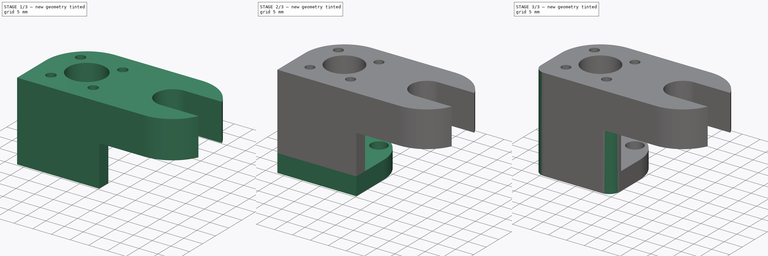
[diagram: build sequence overview — one tinted view per stage of 3, left to right]
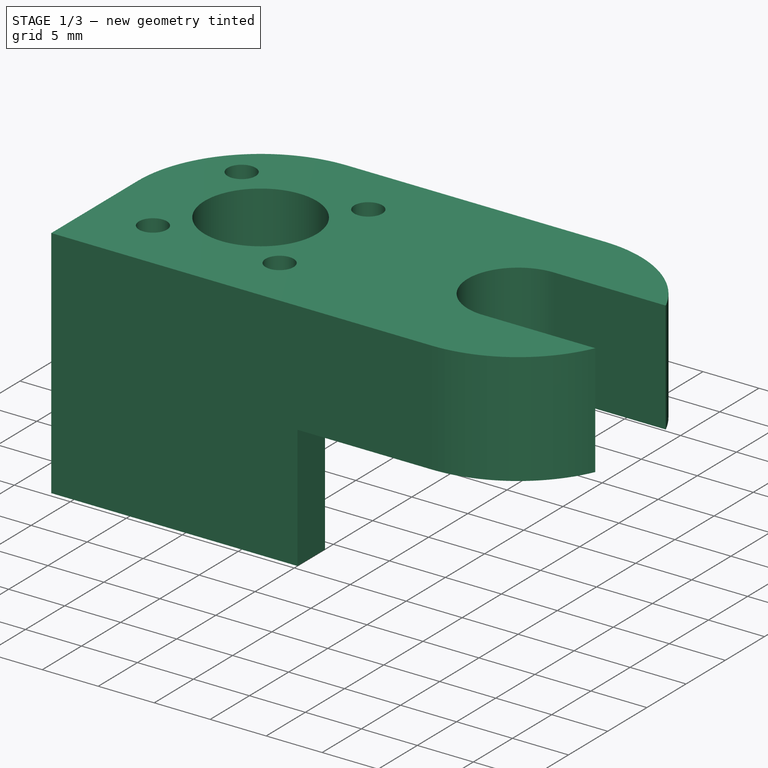
[diagram: stage 1 of 3 — iso view after this stage's code; geometry added in this stage tinted green]
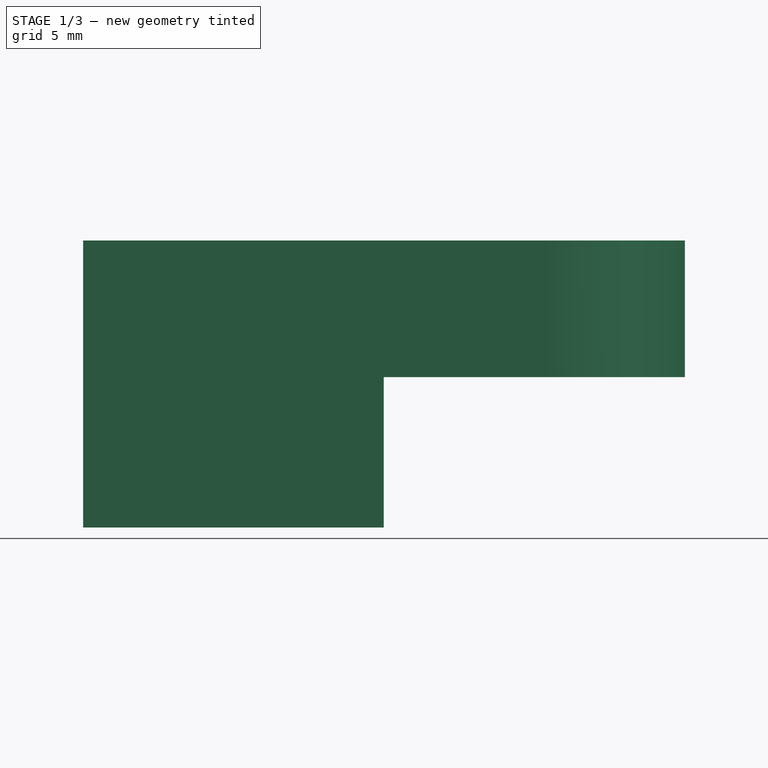
[diagram: stage 1 of 3 — front view after this stage's code; geometry added in this stage tinted green]
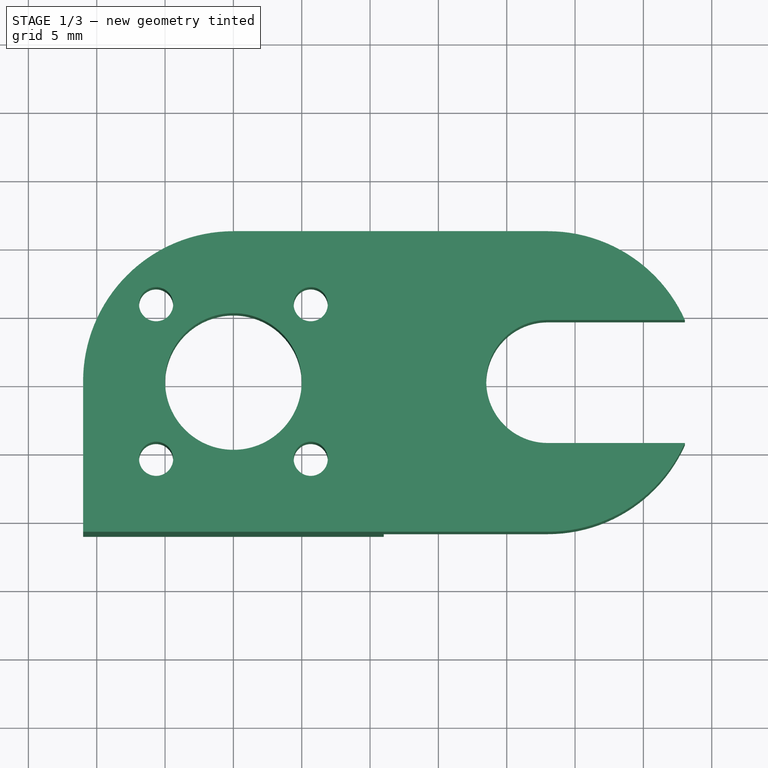
[diagram: stage 1 of 3 — top view after this stage's code; geometry added in this stage tinted green]
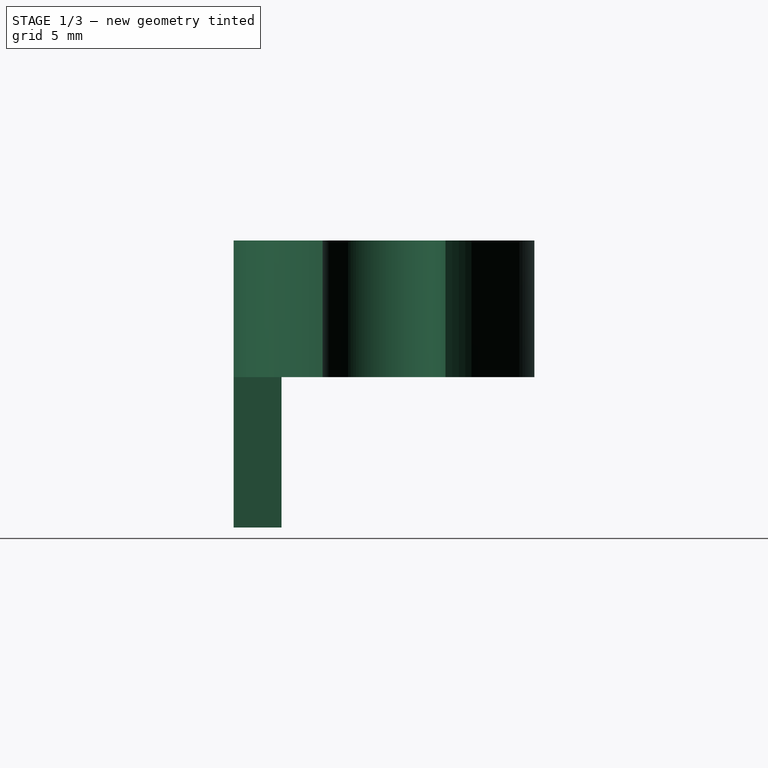
[diagram: stage 1 of 3 — right view after this stage's code; geometry added in this stage tinted green]
FCSTD DOCUMENT  (FreeCAD 0.18R4 (GitTag))
Label: ZAntiWobbler3
License: All rights reserved
LicenseURL: http://en.wikipedia.org/wiki/All_rights_reserved
objects: Sketcher::SketchObject×6, PartDesign::Pad×3, Spreadsheet::Sheet×2, PartDesign::Pocket×2, PartDesign::Body×1
note: 17 computed .brp shape members not serialized (recipe doc carries the construction recipe); baked Part::Feature solids carry a one-line shape summary decoded from their .brp

FEATURE [Spreadsheet::Sheet] Spreadsheet  label="Dimensions"
  cells = A1=ZScrewHoleRadius; B1(ZScrewHoleRadius)==4mm; A2=ZScrewHoleHolderOuterRadius; B2(ZScrewHoleHolderOuterRadius)==5mm; A3=AntiWobblerRadius; B3(AntiWobblerRadius)==11mm; A4=AntiWobblerHeight; B4(AntiWobblerHeight)==10mm; A5=AntiWobblerM3ScrewSeparation; B5(AntiWobblerM3ScrewSeparation)==16mm; A6=ZscrewtoZGuideSeparation; B6(ZscrewtoZGuideSeparation)==23mm; A7=ZGuideRadius; B7(ZGuideRadius)==4mm; A8=ZGuideClearance; B8(ZGuideClearance)==0.5mm; A9=AntiWobblersSeparationHeight; B9(AntiWobblersSeparationHeight)==11mm; A10=AntiWobblersSeparationThickness; B10(AntiWobblersSeparationThickness)==3.5mm; A11=ZScrewHolderBottomHeight; B11(ZScrewHolderBottomHeight)==5mm
FEATURE [Sketcher::SketchObject] Sketch  label="Sketch_BaseZScrewHolder"
  MapMode = 5
  Support = -> [XY_Plane]
  expr: Constraints[38] = Dimensions.AntiWobblerM3ScrewSeparation / 2
  expr: Constraints[26] = M3.M3ThreadRadius
  expr: Constraints[34] = Dimensions.AntiWobblerM3ScrewSeparation
  expr: Constraints[33] = Dimensions.AntiWobblerM3ScrewSeparation
  expr: Constraints[27] = M3.M3ThreadRadius
  expr: Constraints[9] = Dimensions.ZScrewHoleHolderOuterRadius
  expr: Constraints[28] = M3.M3ThreadRadius
  expr: Constraints[25] = M3.M3ThreadRadius
  expr: Constraints[12] = Dimensions.AntiWobblerRadius
  expr: Constraints[11] = Dimensions.AntiWobblerRadius
  expr: Constraints[13] = Dimensions.ZGuideRadius + Dimensions.ZGuideClearance
  expr: Constraints[10] = Dimensions.ZscrewtoZGuideSeparation
  sketch-geometry (17):
    g0: LineSegment StartX=7e-16 StartY=11 StartZ=0 EndX=23 EndY=11 EndZ=0
    g1: LineSegment StartX=23 StartY=-11 StartZ=0 EndX=0 EndY=-11 EndZ=0
    g2: ArcOfCircle CenterX=0 CenterY=2.7e-15 CenterZ=0 NormalX=0 NormalY=0 NormalZ=1 AngleXU=0 Radius=11 StartAngle=1.5708 EndAngle=3.14159
    g3: ArcOfCircle CenterX=23 CenterY=-9e-16 CenterZ=0 NormalX=0 NormalY=0 NormalZ=1 AngleXU=0 Radius=11 StartAngle=4.71239 EndAngle=5.86173
    g4: Circle CenterX=0 CenterY=2.7e-15 CenterZ=0 NormalX=0 NormalY=0 NormalZ=1 AngleXU=0 Radius=5
    g5: ArcOfCircle CenterX=23 CenterY=-9e-16 CenterZ=0 NormalX=0 NormalY=0 NormalZ=1 AngleXU=0 Radius=4.5 StartAngle=1.5708 EndAngle=4.71239
    g6: LineSegment StartX=23 StartY=4.5 StartZ=0 EndX=33.0374 EndY=4.5 EndZ=0
    g7: LineSegment StartX=23 StartY=-4.5 StartZ=0 EndX=33.0374 EndY=-4.5 EndZ=0
    g8: ArcOfCircle CenterX=23 CenterY=-9e-16 CenterZ=0 NormalX=0 NormalY=0 NormalZ=1 AngleXU=0 Radius=11 StartAngle=0.421458 EndAngle=1.5708
    g9: Circle CenterX=-5.65685 CenterY=5.65685 CenterZ=0 NormalX=0 NormalY=0 NormalZ=1 AngleXU=0 Radius=1.25
    g10: Circle CenterX=5.65685 CenterY=5.65685 CenterZ=0 NormalX=0 NormalY=0 NormalZ=1 AngleXU=0 Radius=1.25
    g11: Circle CenterX=5.65685 CenterY=-5.65685 CenterZ=0 NormalX=0 NormalY=0 NormalZ=1 AngleXU=0 Radius=1.25
    g12: Circle CenterX=-5.65685 CenterY=-5.65685 CenterZ=0 NormalX=0 NormalY=0 NormalZ=1 AngleXU=0 Radius=1.25
    g13: LineSegment [constr] StartX=-5.65685 StartY=5.65685 StartZ=0 EndX=5.65685 EndY=-5.65685 EndZ=0
    g14: LineSegment [constr] StartX=-5.65685 StartY=-5.65685 StartZ=0 EndX=5.65685 EndY=5.65685 EndZ=0
    g15: LineSegment StartX=-11 StartY=-11 StartZ=0 EndX=0 EndY=-11 EndZ=0
    g16: LineSegment StartX=-11 StartY=-11 StartZ=0 EndX=-11 EndY=3.6e-15 EndZ=0
  constraints (46):
    c: Horizontal(g0)
    c: Horizontal(g1)
    c: PointOnObject(g0,g-2)
    c: Coincident(g2,g0)
    c: Coincident(g8,g0)
    c: Coincident(g4,g2)
    c: Coincident(g5,g3)
    c: Horizontal(g6)
    c: Horizontal(g7)
    c: Radius(g4) = 5
    c: DistanceX(g2,g3) = 23
    c: Radius(g2) = 11
    c: Radius(g3) = 11
    c: Radius(g5) = 4.5
    c: Coincident(g2,g-1)
    c: Equal(g3,g8)
    c: Coincident(g3,g7)
    c: Coincident(g8,g6)
    c: Coincident(g3,g8)
    c: Coincident(g7,g5)
    c: Coincident(g3,g1)
    c: Vertical(g0,g5)
    c: Vertical(g1,g5)
    c: Vertical(g1,g2)
    c: Tangent(g6,g5) = 1.5708
    c: Radius(g9) = 1.25
    c: Radius(g10) = 1.25
    c: Radius(g12) = 1.25
    c: Radius(g11) = 1.25
    c: Coincident(g13,g9)
    c: Coincident(g13,g11)
    c: Coincident(g14,g12)
    c: Coincident(g14,g10)
    c: Distance(g14) = 16
    c: Distance(g13) = 16
    c: Perpendicular(g13,g14)
    c: Symmetric(g10,g9,g-2)
    c: Symmetric(g10,g11,g-1)
    c: Distance(g12,g2) = 8
    c: Coincident(g16,g15)
    c: Horizontal(g15)
    c: Vertical(g16)
    c: Coincident(g15,g1)
    c: Coincident(g16,g2)
    c: Horizontal(g2,g2)
    c: Vertical(g5,g3)
FEATURE [PartDesign::Pad] Pad  label="Pad_BaseZScrewHolder"
  Length = 10
  Length2 = 100
  Profile = -> Sketch
  Type = 0
  expr: Length = Dimensions.AntiWobblerHeight
FEATURE [Spreadsheet::Sheet] Spreadsheet001  label="M3"
  cells = A1=M3ThreadRadius; B1(M3ThreadRadius)=1.25; A2=M3HeadRadius; B2(M3HeadRadius)=2.75; A3=M3HeadHeight; B3(M3HeadHeight)=3; A4=M3NutFlatToFlat_S; B4(M3NutFlatToFlat_S)=5.5; A5=M3NutThickness; B5(M3NutThickness)=2.4
FEATURE [Sketcher::SketchObject] Sketch002  label="Sketch_ZScrewHoldersSeparator"
  MapMode = 5
  Placement = pos=(0,0,0) rot=(1,0,0;3.14159rad)
  Support = -> [Pad]
  expr: Constraints[11] = Dimensions.AntiWobblerRadius
  expr: Constraints[10] = Dimensions.AntiWobblersSeparationThickness
  expr: Constraints[9] = Dimensions.AntiWobblerRadius
  expr: Constraints[8] = Dimensions.AntiWobblerRadius
  sketch-geometry (4):
    g0: LineSegment StartX=-11 StartY=11 StartZ=0 EndX=11 EndY=11 EndZ=0
    g1: LineSegment StartX=11 StartY=11 StartZ=0 EndX=11 EndY=7.5 EndZ=0
    g2: LineSegment StartX=11 StartY=7.5 StartZ=0 EndX=-11 EndY=7.5 EndZ=0
    g3: LineSegment StartX=-11 StartY=7.5 StartZ=0 EndX=-11 EndY=11 EndZ=0
  constraints (12):
    c: Coincident(g0,g1)
    c: Coincident(g1,g2)
    c: Coincident(g2,g3)
    c: Coincident(g3,g0)
    c: Horizontal(g0)
    c: Horizontal(g2)
    c: Vertical(g1)
    c: Vertical(g3)
    c: DistanceX(g0,g-1) = 11
    c: DistanceX(g-1,g0) = 11
    c: DistanceY(g1,g1) = 3.5
    c: DistanceY(g-1,g0) = 11
FEATURE [PartDesign::Pad] Pad001  label="Pad_ZScrewHoldersSeparator"
  BaseFeature = -> Pad
  Length = 11
  Length2 = 100
  Profile = -> Sketch002
  Type = 0
  expr: Length = Dimensions.AntiWobblersSeparationHeight
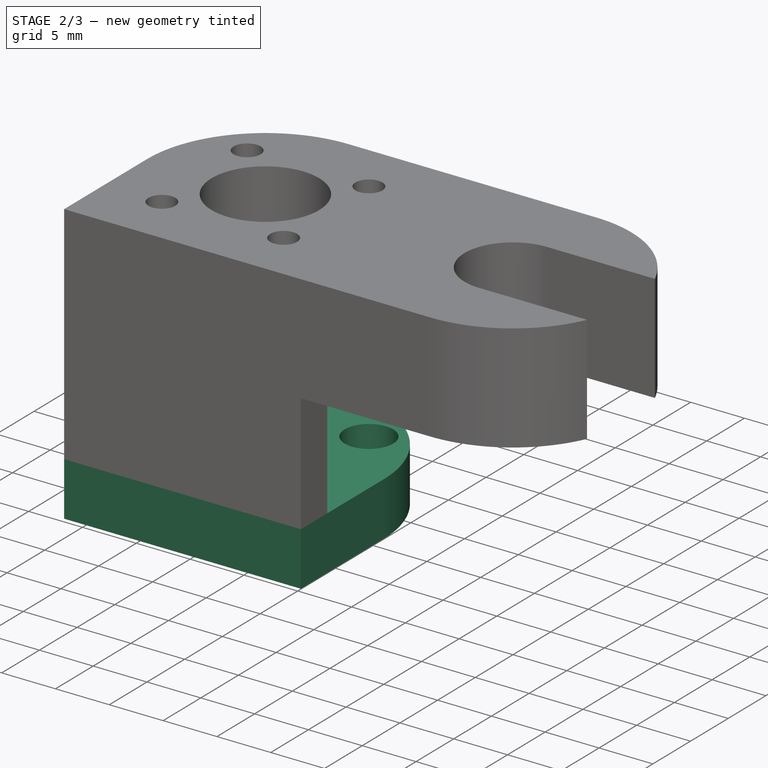
[diagram: stage 2 of 3 — iso view after this stage's code; geometry added in this stage tinted green]
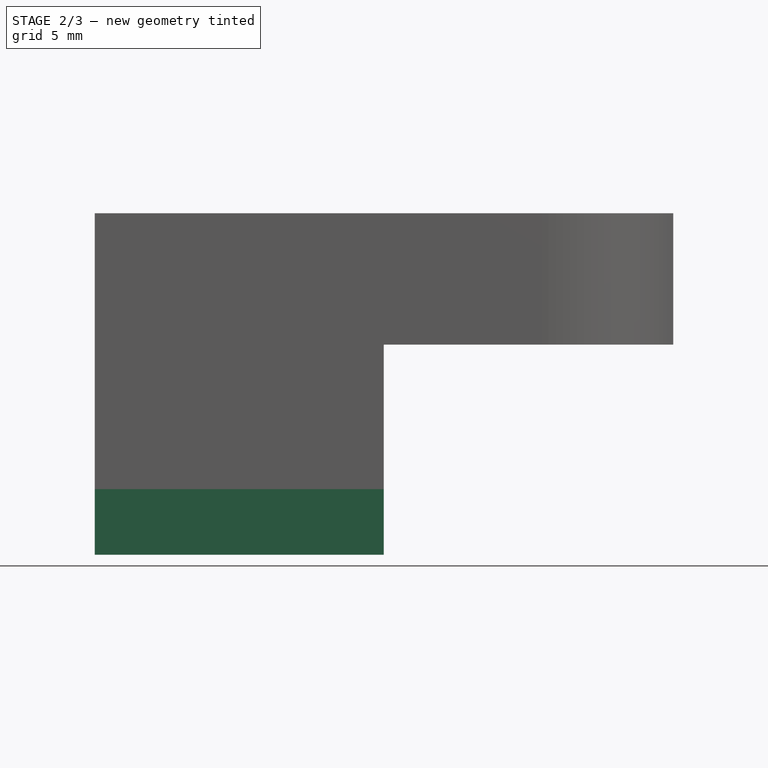
[diagram: stage 2 of 3 — front view after this stage's code; geometry added in this stage tinted green]
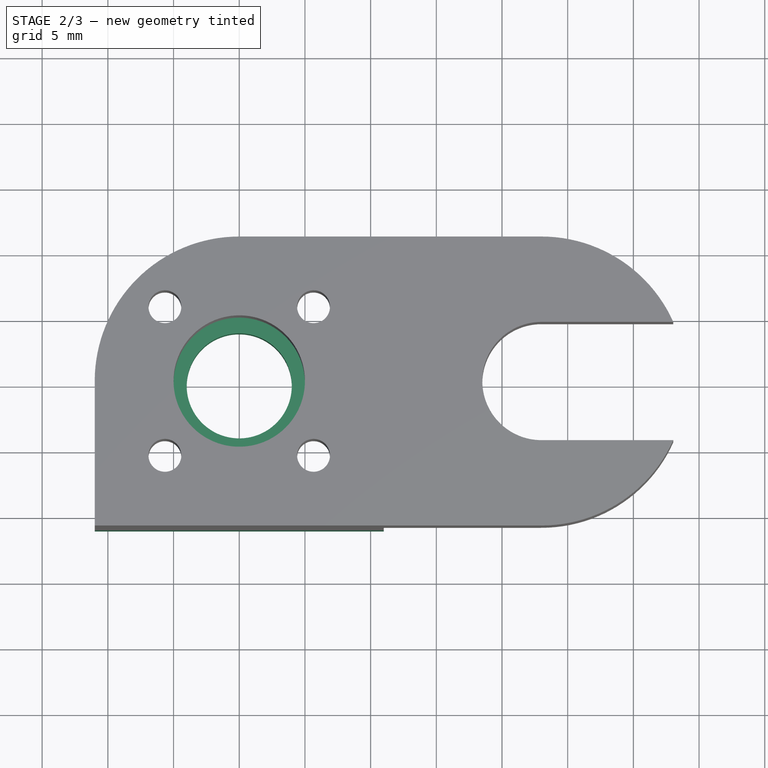
[diagram: stage 2 of 3 — top view after this stage's code; geometry added in this stage tinted green]
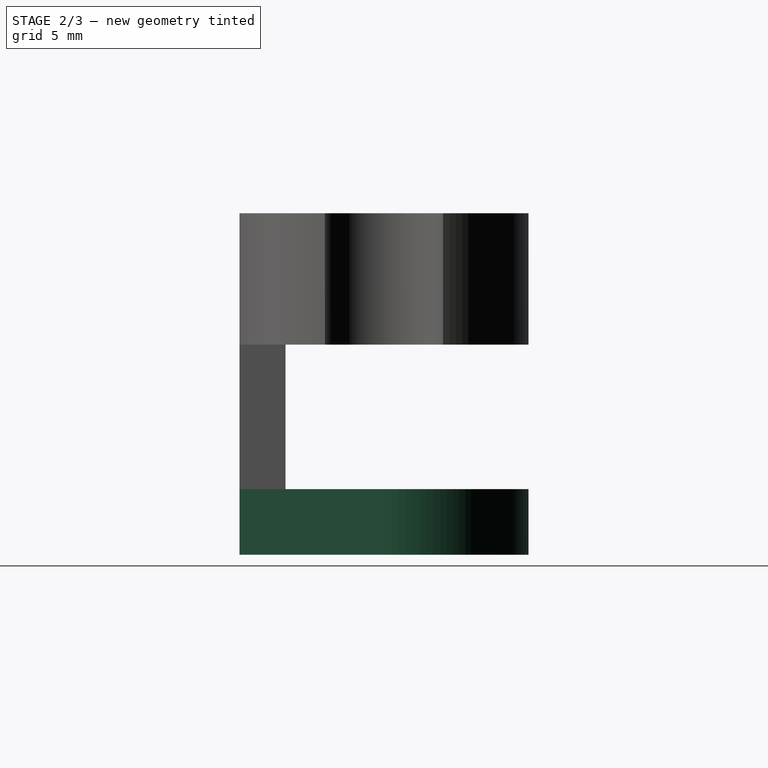
[diagram: stage 2 of 3 — right view after this stage's code; geometry added in this stage tinted green]
FEATURE [Sketcher::SketchObject] Sketch003  label="Sketch_BottomZScrewHolder"
  MapMode = 5
  Placement = pos=(0,0,-11) rot=(1,0,0;3.14159rad)
  Support = -> [Pad001]
  expr: Constraints[23] = Dimensions.AntiWobblerM3ScrewSeparation
  expr: Constraints[15] = M3.M3ThreadRadius + 1
  expr: Constraints[13] = Dimensions.ZScrewHoleRadius
  expr: Constraints[27] = Dimensions.AntiWobblerM3ScrewSeparation / 2
  expr: Constraints[22] = Dimensions.AntiWobblerM3ScrewSeparation
  expr: Constraints[17] = M3.M3ThreadRadius + 1
  expr: Constraints[14] = M3.M3ThreadRadius + 1
  expr: Constraints[9] = Dimensions.AntiWobblerRadius
  expr: Constraints[16] = M3.M3ThreadRadius + 1
  expr: Constraints[8] = Dimensions.AntiWobblerRadius
  sketch-geometry (11):
    g0: LineSegment StartX=-11 StartY=5.4e-15 StartZ=0 EndX=-11 EndY=11 EndZ=0
    g1: LineSegment StartX=-11 StartY=11 StartZ=0 EndX=11 EndY=11 EndZ=0
    g2: LineSegment StartX=11 StartY=11 StartZ=0 EndX=11 EndY=0 EndZ=0
    g3: ArcOfCircle CenterX=0 CenterY=5.4e-15 CenterZ=0 NormalX=0 NormalY=0 NormalZ=1 AngleXU=0 Radius=11 StartAngle=3.14159 EndAngle=6.28319
    g4: Circle CenterX=0 CenterY=5.4e-15 CenterZ=0 NormalX=0 NormalY=0 NormalZ=1 AngleXU=0 Radius=4
    g5: Circle CenterX=-5.65685 CenterY=5.65686 CenterZ=0 NormalX=0 NormalY=0 NormalZ=1 AngleXU=0 Radius=2.25
    g6: Circle CenterX=5.65685 CenterY=5.65686 CenterZ=0 NormalX=0 NormalY=0 NormalZ=1 AngleXU=0 Radius=2.25
    g7: Circle CenterX=5.65685 CenterY=-5.65686 CenterZ=0 NormalX=0 NormalY=0 NormalZ=1 AngleXU=0 Radius=2.25
    g8: Circle CenterX=-5.65687 CenterY=-5.65684 CenterZ=0 NormalX=0 NormalY=0 NormalZ=1 AngleXU=0 Radius=2.25
    g9: LineSegment [constr] StartX=-5.65685 StartY=5.65686 StartZ=0 EndX=5.65685 EndY=-5.65686 EndZ=0
    g10: LineSegment [constr] StartX=-5.65687 StartY=-5.65684 StartZ=0 EndX=5.65685 EndY=5.65686 EndZ=0
  constraints (28):
    c: Vertical(g0)
    c: Coincident(g1,g0)
    c: Horizontal(g1)
    c: Coincident(g2,g1)
    c: PointOnObject(g2,g-1)
    c: Coincident(g3,g-1)
    c: Coincident(g3,g0)
    c: Coincident(g3,g2)
    c: Radius(g3) = 11
    c: DistanceY(g2,g1) = 11
    c: Vertical(g2)
    c: Horizontal(g0,g3)
    c: Coincident(g4,g3)
    c: Radius(g4) = 4
    c: Radius(g5) = 2.25
    c: Radius(g6) = 2.25
    c: Radius(g8) = 2.25
    c: Radius(g7) = 2.25
    c: Coincident(g9,g5)
    c: Coincident(g9,g7)
    c: Coincident(g10,g8)
    c: Coincident(g10,g6)
    c: Distance(g9) = 16
    c: Distance(g10) = 16
    c: Perpendicular(g9,g10)
    c: Symmetric(g6,g7,g-1)
    c: Symmetric(g6,g5,g-2)
    c: Distance(g8,g3) = 8
FEATURE [PartDesign::Pad] Pad002  label="Pad_BottomZScrewHolder"
  BaseFeature = -> Pad001
  Length = 5
  Length2 = 100
  Profile = -> Sketch003
  Type = 0
  expr: Length = Dimensions.ZScrewHolderBottomHeight
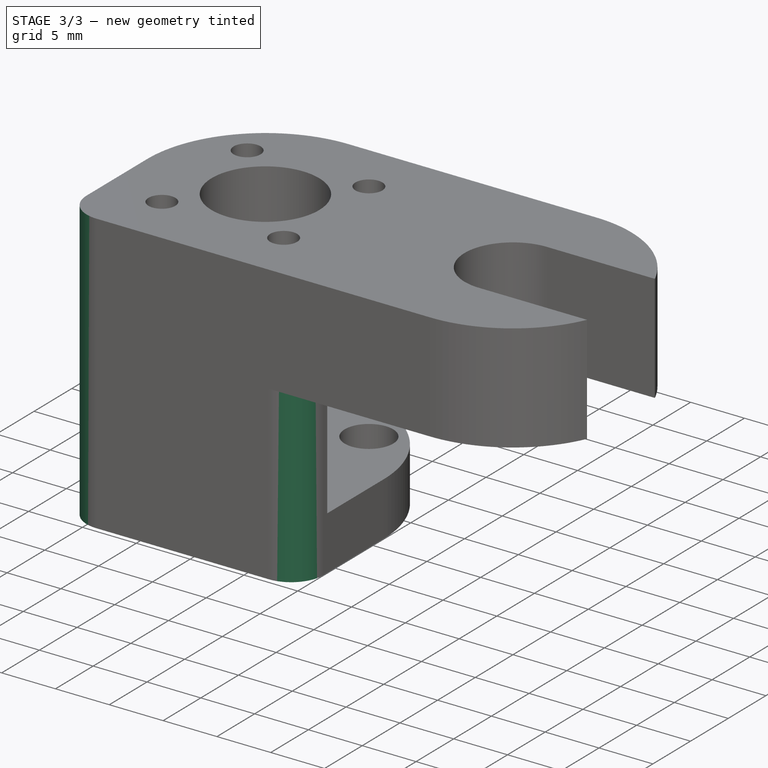
[diagram: stage 3 of 3 — iso view after this stage's code; geometry added in this stage tinted green]
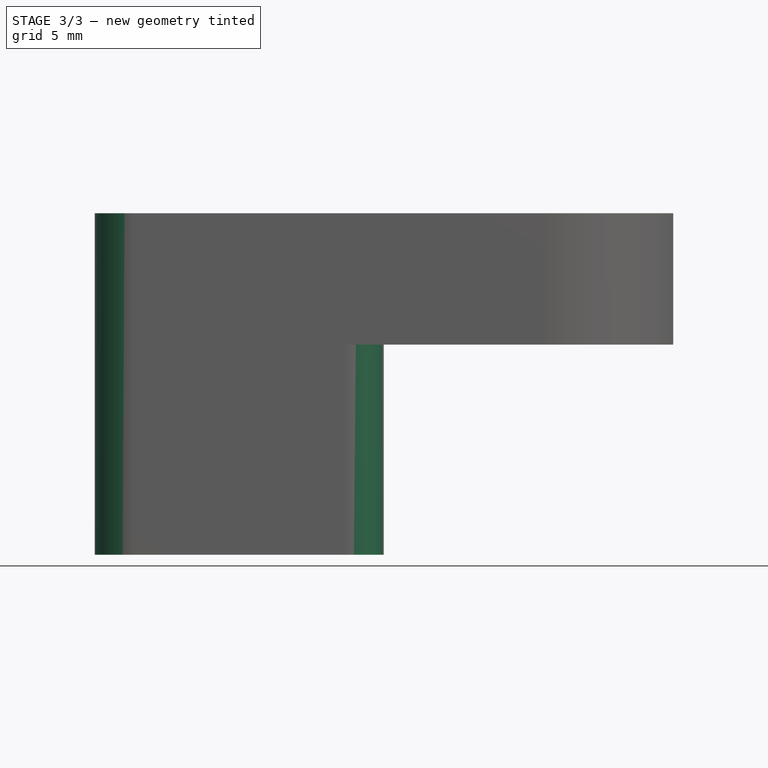
[diagram: stage 3 of 3 — front view after this stage's code; geometry added in this stage tinted green]
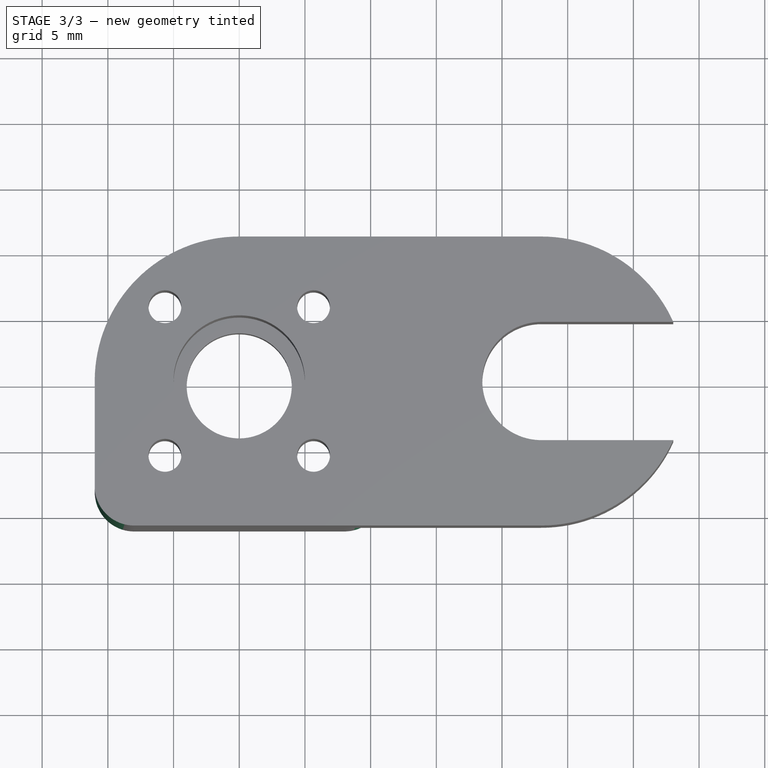
[diagram: stage 3 of 3 — top view after this stage's code; geometry added in this stage tinted green]
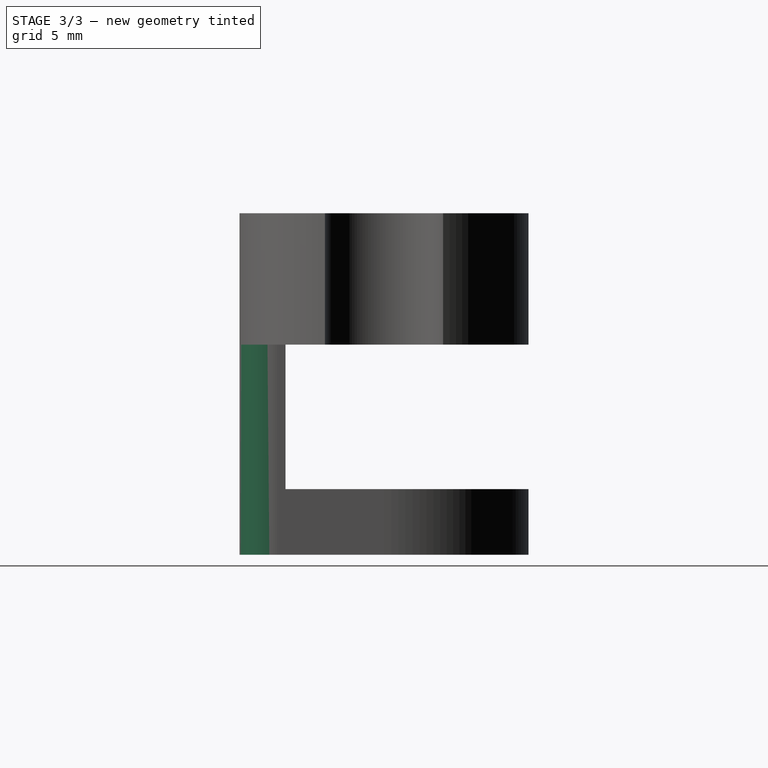
[diagram: stage 3 of 3 — right view after this stage's code; geometry added in this stage tinted green]
FEATURE [Sketcher::SketchObject] Sketch004  label="Sketch_SupportBottom"
  MapMode = 5
  Placement = pos=(-11,0,0) rot=(0.57735,-0.57735,-0.57735;2.0944rad)
  Support = -> [Pad002]
  expr: Constraints[8] = Dimensions.AntiWobblersSeparationHeight
  expr: Constraints[7] = Dimensions.AntiWobblerRadius - Dimensions.AntiWobblersSeparationThickness
  sketch-geometry (3):
    g0: LineSegment StartX=7.5 StartY=-8 StartZ=0 EndX=7.5 EndY=-11 EndZ=0
    g1: LineSegment StartX=7.5 StartY=-11 StartZ=0 EndX=4.5 EndY=-11 EndZ=0
    g2: ArcOfCircle CenterX=4.5 CenterY=-8 CenterZ=0 NormalX=0 NormalY=0 NormalZ=1 AngleXU=0 Radius=3 StartAngle=4.71239 EndAngle=6.28319
  constraints (10):
    c: Vertical(g0)
    c: Coincident(g2,g1)
    c: Coincident(g0,g2)
    c: Horizontal(g1)
    c: Vertical(g1,g2)
    c: Horizontal(g2,g0)
    c: Coincident(g1,g0)
    c: DistanceX(g-1,g0) = 7.5
    c: DistanceY(g0,g-1) = 11
    c: DistanceX(g2,g0) = 3
FEATURE [Sketcher::SketchObject] Sketch005  label="Sketch_RoundingEdge1"
  MapMode = 5
  Placement = pos=(0,0,10) rot=(0,0,1;0rad)
  Support = -> [Pad002]
  expr: Constraints[8] = Dimensions.AntiWobblerRadius
  expr: Constraints[7] = Dimensions.AntiWobblerRadius
  sketch-geometry (3):
    g0: LineSegment StartX=-11 StartY=-11 StartZ=0 EndX=-11 EndY=-8 EndZ=0
    g1: LineSegment StartX=-11 StartY=-11 StartZ=0 EndX=-8 EndY=-11 EndZ=0
    g2: ArcOfCircle CenterX=-8 CenterY=-8 CenterZ=0 NormalX=0 NormalY=0 NormalZ=1 AngleXU=0 Radius=3 StartAngle=3.14159 EndAngle=4.71239
  constraints (10):
    c: Vertical(g0)
    c: Coincident(g1,g0)
    c: Horizontal(g1)
    c: Coincident(g2,g0)
    c: Coincident(g2,g1)
    c: Horizontal(g2,g0)
    c: Vertical(g2,g1)
    c: DistanceX(g0,g-1) = 11
    c: DistanceY(g0,g-1) = 11
    c: DistanceY(g1,g2) = 3
FEATURE [PartDesign::Pocket] Pocket  label="Pocket_RoundingEdge1"
  BaseFeature = -> Pad002
  Length = 5
  Length2 = 100
  Profile = -> Sketch005
  Type = 1
FEATURE [Sketcher::SketchObject] Sketch006  label="Sketch_RoundingEdge2"
  MapMode = 5
  Placement = pos=(0,0,-16) rot=(1,0,0;3.14159rad)
  Support = -> [Pocket]
  expr: Constraints[8] = Dimensions.AntiWobblerRadius
  expr: Constraints[7] = Dimensions.AntiWobblerRadius
  sketch-geometry (3):
    g0: LineSegment StartX=8 StartY=11 StartZ=0 EndX=11 EndY=11 EndZ=0
    g1: LineSegment StartX=11 StartY=11 StartZ=0 EndX=11 EndY=8 EndZ=0
    g2: ArcOfCircle CenterX=8 CenterY=8 CenterZ=0 NormalX=0 NormalY=0 NormalZ=1 AngleXU=0 Radius=3 StartAngle=0 EndAngle=1.5708
  constraints (10):
    c: Coincident(g2,g0)
    c: Coincident(g2,g1)
    c: Horizontal(g2,g1)
    c: Horizontal(g0)
    c: Vertical(g0,g2)
    c: Vertical(g1)
    c: Coincident(g1,g0)
    c: DistanceX(g-1,g0) = 11
    c: DistanceY(g-1,g0) = 11
    c: DistanceX(g2,g1) = 3
FEATURE [PartDesign::Pocket] Pocket001  label="Pocket_RoundingEdge2"
  BaseFeature = -> Pocket
  Length = 0
  Length2 = 100
  Profile = -> Sketch006
  Type = 3
  UpToFace = -> Pocket [Face3]
FEATURE [PartDesign::Body] Body  label="Z Anti Wobbler"
  Group = -> [Sketch,Pad,Sketch002,Pad001,Sketch003,Pad002,Sketch004,Sketch005,Pocket,Sketch006,Pocket001]
  Origin = -> Origin
  Tip = -> Pocket001
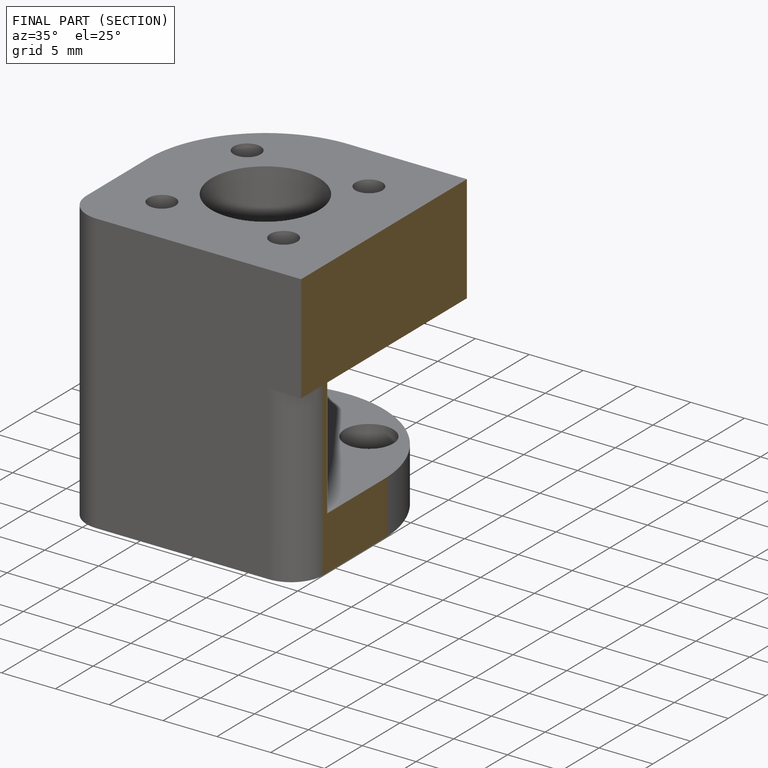
[diagram: finished part — half-section view (interior)]
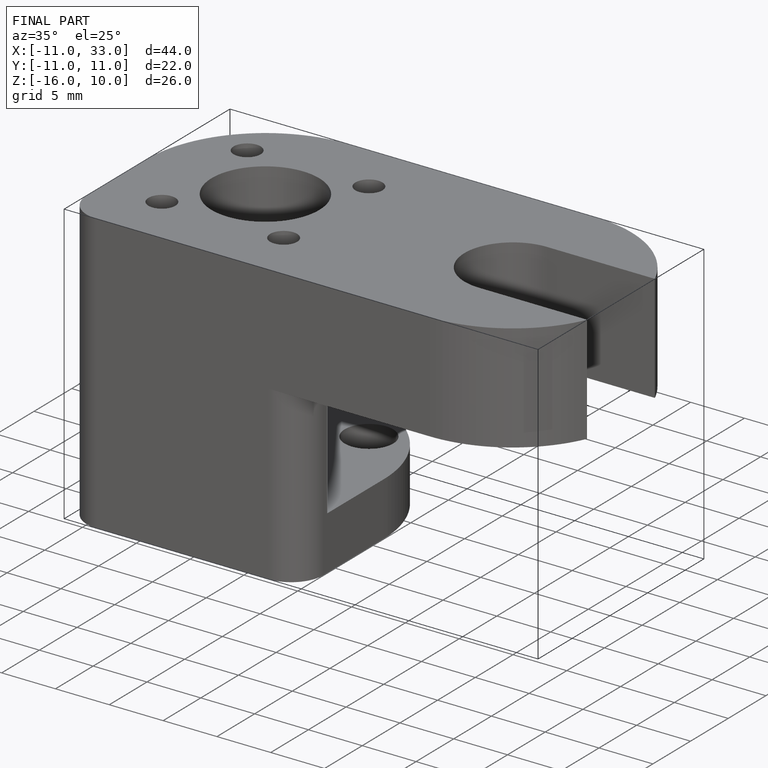
[diagram: finished part — iso view with bounding-box wireframe]
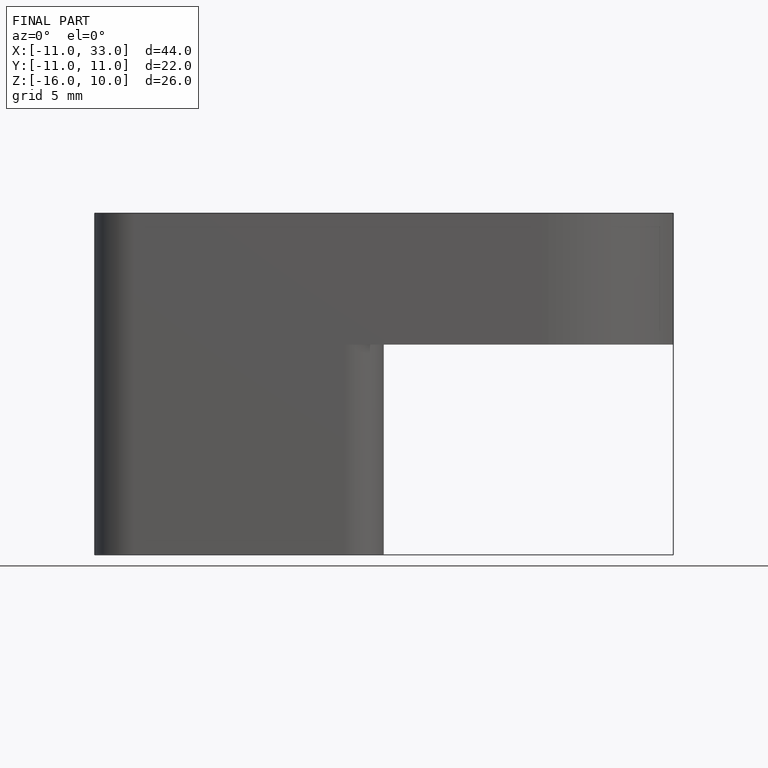
[diagram: finished part — front view with bounding-box wireframe]
